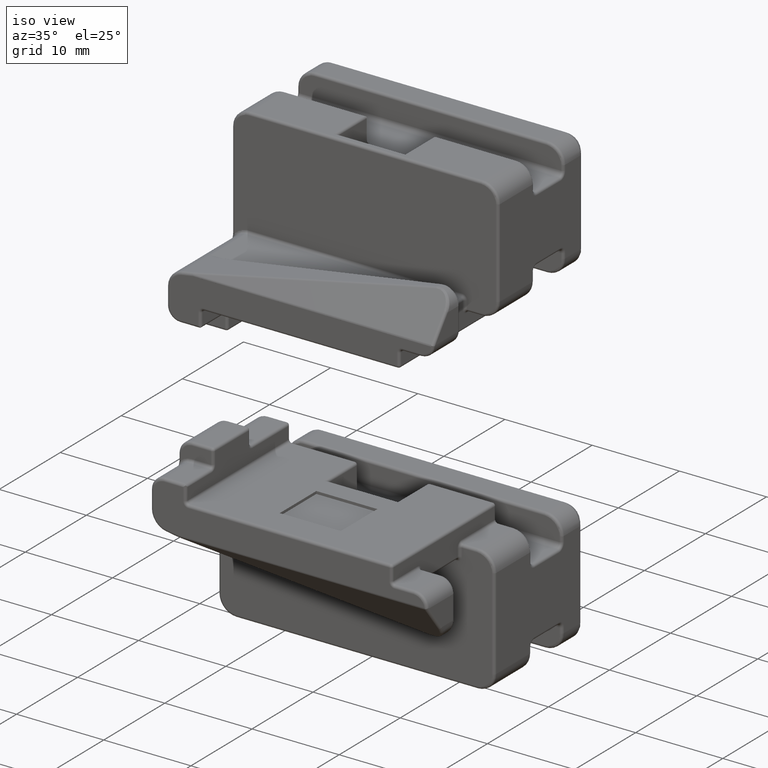
[diagram: clean part render]
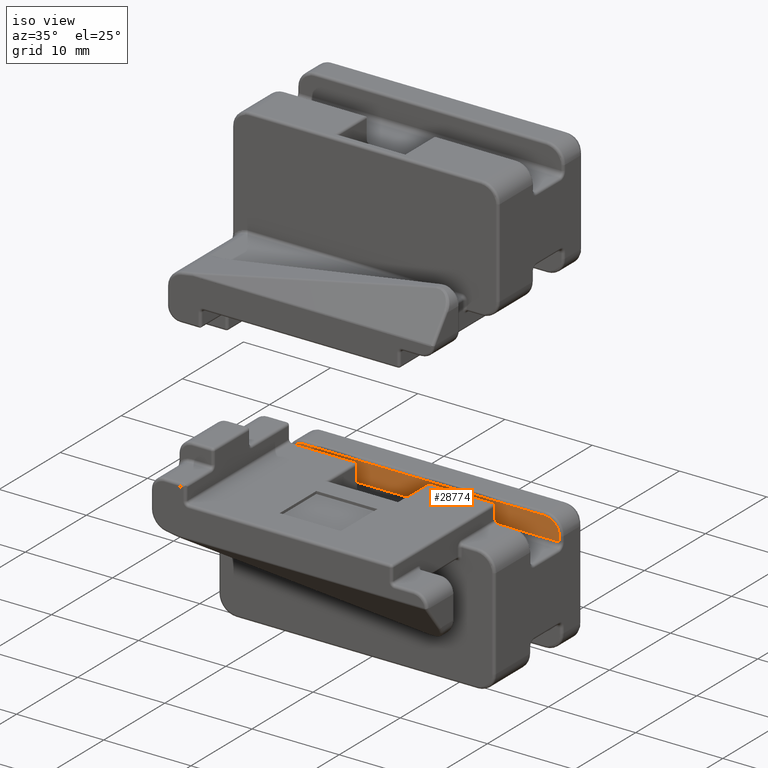
[diagram: same view with one face highlighted and labeled with its STEP entity id]
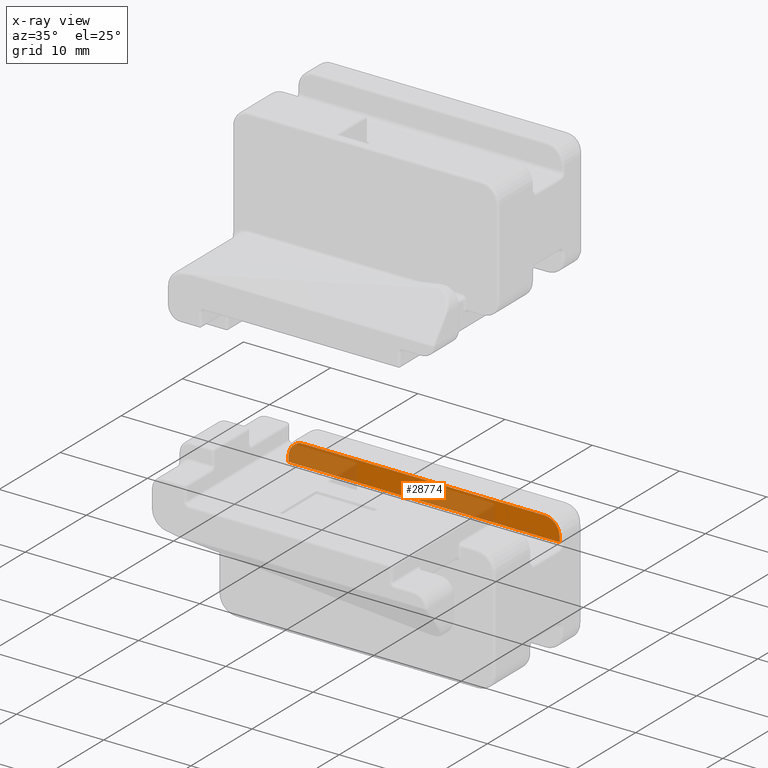
[diagram: x-ray of the same camera — body ghosted, the highlighted face saturated]
A machine part, iso view. The second image highlights one B-rep face of the part: STEP entity #28774.
The next image is the same camera in x-ray: the body ghosted, the highlighted face saturated — about 48% of this face is hidden behind the body in this view.
In plain terms, the highlighted planar face has unit normal (-0, 1, -0).
Its self-contained STEP definition (entity closure, byte-faithful):
#194 = ORIENTED_EDGE ( 'NONE', *, *, #2401, .T. ) ;
#259 = CARTESIAN_POINT ( 'NONE',  ( -86.27159562005489600, 58.63120508436628600, -52.10772025123731800 ) ) ;
#365 = CARTESIAN_POINT ( 'NONE',  ( -85.28581774844060700, 58.63120507582517900, -52.58954016671845000 ) ) ;
#484 = CARTESIAN_POINT ( 'NONE',  ( -85.04756352104898600, 58.63120530450869000, -52.88219373986807200 ) ) ;
#592 = CARTESIAN_POINT ( 'NONE',  ( -84.86448417290544900, 58.63120508606064600, -53.26447868061441000 ) ) ;
#623 = CARTESIAN_POINT ( 'NONE',  ( -84.77599785715634100, 58.63120507557527400, -54.41131073726552400 ) ) ;
#1588 = PLANE ( 'NONE',  #21399 ) ;
#2401 = EDGE_CURVE ( 'NONE', #26485, #15026, #5120, .T. ) ;
#2408 = CARTESIAN_POINT ( 'NONE',  ( -114.1511978571563500, 58.63120507557525900, -52.09751073726552300 ) ) ;
#2699 = CARTESIAN_POINT ( 'NONE',  ( -86.06123201279064000, 58.63120507254865300, -52.15028080118277400 ) ) ;
#2808 = CARTESIAN_POINT ( 'NONE',  ( -85.27944463944336900, 58.63120507559349200, -52.59587452698758600 ) ) ;
#2915 = CARTESIAN_POINT ( 'NONE',  ( -85.03128326941154600, 58.63120528402880900, -52.90813727507597300 ) ) ;
#3025 = CARTESIAN_POINT ( 'NONE',  ( -84.86421929554049400, 58.63120508623377000, -53.26526811280537300 ) ) ;
#3644 = EDGE_CURVE ( 'NONE', #26485, #22222, #21422, .T. ) ;
#3815 = CARTESIAN_POINT ( 'NONE',  ( -115.3781884842864000, 58.63120507655428100, -52.61630066056437000 ) ) ;
#3846 = CARTESIAN_POINT ( 'NONE',  ( -115.2015944756674900, 58.63120521144603000, -52.45771460756365900 ) ) ;
#3907 = CARTESIAN_POINT ( 'NONE',  ( -115.3655702273636600, 58.63120507566505800, -52.60350435236991000 ) ) ;
#3951 = CARTESIAN_POINT ( 'NONE',  ( -115.2049868228786000, 58.63120520550026500, -52.46031905235439300 ) ) ;
#4056 = CARTESIAN_POINT ( 'NONE',  ( -115.3956578876406500, 58.63120507932901400, -52.63440786075229700 ) ) ;
#4109 = B_SPLINE_CURVE_WITH_KNOTS ( 'NONE', 3,
 ( #27281, #16337, #18849, #18412, #17380, #27119, #18956, #14805, #15534, #5308, #4606, #5229, #4166, #4056, #3815, #4505, #3907, #4713, #4124, #4782, #4288, #4469, #4919, #3951, #3846, #20716, #21256, #20818, #21752, #20911, #21367, #21023, #21160, #21869, #21828, #21798, #20651, #21717, #20853, #21623, #20517, #13505, #13411, #13346, #13213, #13641, #12686, #12964, #13711, #13030, #13913, #12624 ),
 .UNSPECIFIED., .F., .F.,
 ( 4, 2, 2, 2, 2, 2, 1, 1, 1, 1, 2, 2, 2, 2, 2, 1, 2, 2, 2, 1, 2, 2, 2, 2, 2, 2, 1, 1, 2, 4 ),
 ( 0.0000000000000000000, 0.1250000000042899600, 0.1875000000064309700, 0.2500000000085719800, 0.3750000000128540000, 0.4375000000149908400, 0.4687500000160622100, 0.4843750000165978900, 0.4921875000168632300, 0.4960937500169906300, 0.4980468750170543000, 0.5000000000171179700, 0.5625000000150243200, 0.5703125000147621900, 0.5781250000145000700, 0.5937500000139914700, 0.6250000000129818400, 0.6406250000124684700, 0.6445312500123400200, 0.6484375000122116800, 0.6562500000119639900, 0.6875000000109795500, 0.7500000000090107900, 0.7812500000080263600, 0.7851562500078835800, 0.7890625000077407000, 0.7968750000074523700, 0.8125000000068887100, 0.8750000000045876600, 1.000000000000000000 ),
 .UNSPECIFIED. ) ;
#4124 = CARTESIAN_POINT ( 'NONE',  ( -115.3605920362067100, 58.63120507557523800, -52.59851666873332500 ) ) ;
#4166 = CARTESIAN_POINT ( 'NONE',  ( -115.4299054124422100, 58.63120508933161500, -52.67128207560868000 ) ) ;
#4288 = CARTESIAN_POINT ( 'NONE',  ( -115.3220299333096800, 58.63120504921716500, -52.55714393083886200 ) ) ;
#4469 = CARTESIAN_POINT ( 'NONE',  ( -115.2367328472341100, 58.63120515679685200, -52.48585212994918700 ) ) ;
#4505 = CARTESIAN_POINT ( 'NONE',  ( -115.3693684277034200, 58.63120507582517900, -52.60733062854997400 ) ) ;
#4606 = CARTESIAN_POINT ( 'NONE',  ( -115.5126384638303600, 58.63120513081408100, -52.77078786041425200 ) ) ;
#4713 = CARTESIAN_POINT ( 'NONE',  ( -115.3630340674343100, 58.63120507559348500, -52.60095751955263700 ) ) ;
#4782 = CARTESIAN_POINT ( 'NONE',  ( -115.3572866946570600, 58.63120507557523800, -52.59521836318355500 ) ) ;
#4919 = CARTESIAN_POINT ( 'NONE',  ( -115.2266044530580400, 58.63120517106335700, -52.47756041589855200 ) ) ;
#5096 = ORIENTED_EDGE ( 'NONE', *, *, #17840, .F. ) ;
#5120 = LINE ( 'NONE', #7296, #18525 ) ;
#5172 = CARTESIAN_POINT ( 'NONE',  ( -85.90217727651828700, 58.63120510632228400, -52.19914278113409300 ) ) ;
#5229 = CARTESIAN_POINT ( 'NONE',  ( -115.4580467235260200, 58.63120510286741900, -52.70398941149958500 ) ) ;
#5279 = CARTESIAN_POINT ( 'NONE',  ( -85.27370547637043800, 58.63120507557526700, -52.60162190648315300 ) ) ;
#5308 = CARTESIAN_POINT ( 'NONE',  ( -115.5467769155001000, 58.63120515009970300, -52.81716630332533700 ) ) ;
#5393 = CARTESIAN_POINT ( 'NONE',  ( -85.02183574853594900, 58.63120526818418900, -52.92360600275043200 ) ) ;
#5499 = CARTESIAN_POINT ( 'NONE',  ( -84.85943614970568700, 58.63120509138804700, -53.27968551595283500 ) ) ;
#5506 = EDGE_CURVE ( 'NONE', #17058, #15026, #14500, .T. ) ;
#5584 = FACE_OUTER_BOUND ( 'NONE', #11747, .T. ) ;
#6332 = EDGE_CURVE ( 'NONE', #22222, #26847, #4109, .T. ) ;
#7197 = DIRECTION ( 'NONE',  ( 1.000000000000000000, 0.0000000000000000000, 0.0000000000000000000 ) ) ;
#7296 = CARTESIAN_POINT ( 'NONE',  ( -84.47419785715634100, 58.63120507557527400, -54.41131073726552400 ) ) ;
#7609 = CARTESIAN_POINT ( 'NONE',  ( -85.63961224037628000, 58.63120518254334000, -52.31701172617142200 ) ) ;
#7718 = CARTESIAN_POINT ( 'NONE',  ( -85.16433924815193300, 58.63120515679686700, -52.72217574926088400 ) ) ;
#7828 = CARTESIAN_POINT ( 'NONE',  ( -85.00167516323267600, 58.63120523576710500, -52.95788740905636200 ) ) ;
#7931 = CARTESIAN_POINT ( 'NONE',  ( -84.83176167685489600, 58.63120513140800200, -53.36946036612956600 ) ) ;
#7952 = VERTEX_POINT ( 'NONE', #18265 ) ;
#10006 = CARTESIAN_POINT ( 'NONE',  ( -85.44927498030210700, 58.63120513081411600, -52.44627013059076100 ) ) ;
#10088 = DIRECTION ( 'NONE',  ( 1.000000000000000000, 0.0000000000000000000, -0.0000000000000000000 ) ) ;
#10113 = CARTESIAN_POINT ( 'NONE',  ( -85.13880617265070300, 58.63120520550025800, -52.75392177104249900 ) ) ;
#10221 = CARTESIAN_POINT ( 'NONE',  ( -84.95088482038248400, 58.63120516260593000, -53.05280311090918100 ) ) ;
#10326 = CARTESIAN_POINT ( 'NONE',  ( -84.78590138745998700, 58.63120516741103200, -53.59297980817658000 ) ) ;
#11417 = CARTESIAN_POINT ( 'NONE',  ( -84.47419785715634100, 58.63120507557526700, -54.91431073726553100 ) ) ;
#11747 = EDGE_LOOP ( 'NONE', ( #28929, #29837, #194, #16863, #14239, #5096 ) ) ;
#12451 = CARTESIAN_POINT ( 'NONE',  ( -85.34976919549807000, 58.63120508933164400, -52.52900318197934800 ) ) ;
#12557 = CARTESIAN_POINT ( 'NONE',  ( -85.12218047453771400, 58.63120523982617300, -52.77545430696563500 ) ) ;
#12624 = CARTESIAN_POINT ( 'NONE',  ( -114.1511978571563500, 58.63120507557525900, -52.09751073726552300 ) ) ;
#12664 = CARTESIAN_POINT ( 'NONE',  ( -84.88382687115596100, 58.63120509489940700, -53.20897099438484900 ) ) ;
#12686 = CARTESIAN_POINT ( 'NONE',  ( -114.6600709656660200, 58.63120509895900100, -52.17475056708694600 ) ) ;
#12759 = CARTESIAN_POINT ( 'NONE',  ( -84.77599785715634100, 58.63120507557525900, -53.80771073726552300 ) ) ;
#12964 = CARTESIAN_POINT ( 'NONE',  ( -114.5894482282931200, 58.63120513140798100, -52.15327455695744200 ) ) ;
#13030 = CARTESIAN_POINT ( 'NONE',  ( -114.3659287862462400, 58.63120516741103200, -52.10741426755822700 ) ) ;
#13213 = CARTESIAN_POINT ( 'NONE',  ( -114.6887803458000800, 58.63120508790540700, -52.18410495168505700 ) ) ;
#13346 = CARTESIAN_POINT ( 'NONE',  ( -114.6936404813009700, 58.63120508623374100, -52.18573217554408200 ) ) ;
#13411 = CARTESIAN_POINT ( 'NONE',  ( -114.6941087240479900, 58.63120508610487700, -52.18588935934131700 ) ) ;
#13505 = CARTESIAN_POINT ( 'NONE',  ( -114.6944299151312800, 58.63120508606063200, -52.18599705346012700 ) ) ;
#13641 = CARTESIAN_POINT ( 'NONE',  ( -114.6792230784680800, 58.63120509138803300, -52.18094902981383100 ) ) ;
#13711 = CARTESIAN_POINT ( 'NONE',  ( -114.5241288073605800, 58.63120515783546000, -52.13757577885291300 ) ) ;
#13814 = DIRECTION ( 'NONE',  ( 0.0000000000000000000, 1.119176436114069000E-015, 1.000000000000000000 ) ) ;
#13913 = CARTESIAN_POINT ( 'NONE',  ( -114.2585491954463200, 58.63120507557524500, -52.09735084757947000 ) ) ;
#14239 = ORIENTED_EDGE ( 'NONE', *, *, #15519, .F. ) ;
#14500 = LINE ( 'NONE', #20441, #24537 ) ;
#14681 = CARTESIAN_POINT ( 'NONE',  ( -86.48619785715634100, 58.63120507557526700, -52.09751073726552300 ) ) ;
#14780 = CARTESIAN_POINT ( 'NONE',  ( -85.29478778045479700, 58.63120507655430200, -52.58072011013536700 ) ) ;
#14805 = CARTESIAN_POINT ( 'NONE',  ( -115.6955558353475800, 58.63120516209154000, -53.06354249047657800 ) ) ;
#14880 = CARTESIAN_POINT ( 'NONE',  ( -85.07049885150046000, 58.63120531207326300, -52.84716293384565900 ) ) ;
#14975 = CARTESIAN_POINT ( 'NONE',  ( -84.86571673502632500, 58.63120508584079000, -53.26080480600182900 ) ) ;
#15026 = VERTEX_POINT ( 'NONE', #623 ) ;
#15519 = EDGE_CURVE ( 'NONE', #7952, #17058, #27205, .T. ) ;
#15534 = CARTESIAN_POINT ( 'NONE',  ( -115.6418968682493500, 58.63120518254330400, -52.96112512049049300 ) ) ;
#16337 = CARTESIAN_POINT ( 'NONE',  ( -115.8613322063405300, 58.63120507557525200, -53.70040222321925000 ) ) ;
#16863 = ORIENTED_EDGE ( 'NONE', *, *, #5506, .F. ) ;
#17016 = CARTESIAN_POINT ( 'NONE',  ( -86.11347120508880000, 58.63120507637420800, -52.13778820721801600 ) ) ;
#17058 = VERTEX_POINT ( 'NONE', #23279 ) ;
#17108 = CARTESIAN_POINT ( 'NONE',  ( -85.28199147226058600, 58.63120507566506500, -52.59333836705820900 ) ) ;
#17196 = CARTESIAN_POINT ( 'NONE',  ( -115.8613978571563500, 58.63120507557525900, -53.80771073726552300 ) ) ;
#17215 = CARTESIAN_POINT ( 'NONE',  ( -85.04018563018861700, 58.63120529754530000, -52.89378086205233100 ) ) ;
#17319 = CARTESIAN_POINT ( 'NONE',  ( -84.86437647896707400, 58.63120508610487000, -53.26479987116142200 ) ) ;
#17380 = CARTESIAN_POINT ( 'NONE',  ( -115.8086277932390500, 58.63120507254862400, -53.38274489290562700 ) ) ;
#17840 = EDGE_CURVE ( 'NONE', #26847, #7952, #25711, .T. ) ;
#18265 = CARTESIAN_POINT ( 'NONE',  ( -86.48619785715634100, 58.63120507557526700, -52.09751073726552300 ) ) ;
#18412 = CARTESIAN_POINT ( 'NONE',  ( -115.8211203872038300, 58.63120507637420100, -53.43498408520302000 ) ) ;
#18489 = VECTOR ( 'NONE', #29128, 1000.000000000000000 ) ;
#18525 = VECTOR ( 'NONE', #7197, 1000.000000000000000 ) ;
#18849 = CARTESIAN_POINT ( 'NONE',  ( -115.8511883431845600, 58.63120508436630000, -53.59310850016692700 ) ) ;
#18956 = CARTESIAN_POINT ( 'NONE',  ( -115.7597658132873400, 58.63120510632226300, -53.22369015663414200 ) ) ;
#19082 = DIRECTION ( 'NONE',  ( -0.0000000000000000000, -1.119176436114069000E-015, -1.000000000000000000 ) ) ;
#19361 = VECTOR ( 'NONE', #10088, 1000.000000000000000 ) ;
#19435 = CARTESIAN_POINT ( 'NONE',  ( -85.95814686786404500, 58.63120508526574800, -52.18009750062309100 ) ) ;
#19542 = CARTESIAN_POINT ( 'NONE',  ( -85.27700378883361100, 58.63120507557525200, -52.59831655800518700 ) ) ;
#19636 = CARTESIAN_POINT ( 'NONE',  ( -85.02896304305566800, 58.63120528005180900, -52.91188728444581800 ) ) ;
#19743 = CARTESIAN_POINT ( 'NONE',  ( -84.86259207157627300, 58.63120508790542800, -53.27012824862060800 ) ) ;
#20441 = CARTESIAN_POINT ( 'NONE',  ( -84.77599785715634100, 58.63120507557526700, -54.91431073726553100 ) ) ;
#20517 = CARTESIAN_POINT ( 'NONE',  ( -114.6981037944316500, 58.63120508584078300, -52.18722961716368800 ) ) ;
#20651 = CARTESIAN_POINT ( 'NONE',  ( -114.9061054943212800, 58.63120516260590200, -52.27239770586593400 ) ) ;
#20716 = CARTESIAN_POINT ( 'NONE',  ( -115.1834542835794400, 58.63120523982616600, -52.44369335168666200 ) ) ;
#20818 = CARTESIAN_POINT ( 'NONE',  ( -115.1117456532633100, 58.63120531207324900, -52.39201172669194100 ) ) ;
#20853 = CARTESIAN_POINT ( 'NONE',  ( -114.7499376157546600, 58.63120509489938600, -52.20533975707120800 ) ) ;
#20911 = CARTESIAN_POINT ( 'NONE',  ( -115.0651277295428900, 58.63120529754525700, -52.36169850852971300 ) ) ;
#21023 = CARTESIAN_POINT ( 'NONE',  ( -115.0470213101274300, 58.63120528005178800, -52.35047592325846500 ) ) ;
#21160 = CARTESIAN_POINT ( 'NONE',  ( -115.0353025928032100, 58.63120526818415400, -52.34334862933072700 ) ) ;
#21256 = CARTESIAN_POINT ( 'NONE',  ( -115.1473167422196200, 58.63120529185758300, -52.41655065141718900 ) ) ;
#21367 = CARTESIAN_POINT ( 'NONE',  ( -115.0507713189714600, 58.63120528402880900, -52.35279614928803900 ) ) ;
#21399 = AXIS2_PLACEMENT_3D ( 'NONE', #11417, #28011, #13814 ) ;
#21422 = LINE ( 'NONE', #29085, #18489 ) ;
#21623 = CARTESIAN_POINT ( 'NONE',  ( -114.7069487688289200, 58.63120508680053400, -52.19016968313359000 ) ) ;
#21717 = CARTESIAN_POINT ( 'NONE',  ( -114.8007502142392000, 58.63120510587550900, -52.22361550922170900 ) ) ;
#21752 = CARTESIAN_POINT ( 'NONE',  ( -115.0767148502534700, 58.63120530450866900, -52.36907639839996200 ) ) ;
#21798 = CARTESIAN_POINT ( 'NONE',  ( -114.9460336139696000, 58.63120518857267900, -52.29230039182257900 ) ) ;
#21802 = CARTESIAN_POINT ( 'NONE',  ( -85.74202961036165500, 58.63120516209156800, -52.26335275907322100 ) ) ;
#21828 = CARTESIAN_POINT ( 'NONE',  ( -115.0010211892815900, 58.63120523576706200, -52.32318804559614000 ) ) ;
#21869 = CARTESIAN_POINT ( 'NONE',  ( -115.0178956350822400, 58.63120525104073300, -52.33290658196721500 ) ) ;
#21911 = CARTESIAN_POINT ( 'NONE',  ( -85.23563104374349600, 58.63120504921715100, -52.63687866919237700 ) ) ;
#22007 = CARTESIAN_POINT ( 'NONE',  ( -85.01139370032707600, 58.63120525104073300, -52.94101296191160300 ) ) ;
#22114 = CARTESIAN_POINT ( 'NONE',  ( -84.85323768698012300, 58.63120509895898600, -53.29883762875532200 ) ) ;
#22222 = VERTEX_POINT ( 'NONE', #17196 ) ;
#23279 = CARTESIAN_POINT ( 'NONE',  ( -84.77599785715634100, 58.63120507557525900, -53.80771073726552300 ) ) ;
#24233 = CARTESIAN_POINT ( 'NONE',  ( -85.49565342321264400, 58.63120515009974600, -52.41213167892086500 ) ) ;
#24311 = CARTESIAN_POINT ( 'NONE',  ( -84.47419785715634100, 58.63120507557526700, -52.09751073726552300 ) ) ;
#24339 = CARTESIAN_POINT ( 'NONE',  ( -85.15604753475966500, 58.63120517106336400, -52.73230414265822200 ) ) ;
#24445 = CARTESIAN_POINT ( 'NONE',  ( -84.97078750729315300, 58.63120518857269300, -53.01287498861606200 ) ) ;
#24537 = VECTOR ( 'NONE', #19082, 1000.000000000000000 ) ;
#24548 = CARTESIAN_POINT ( 'NONE',  ( -84.81606289875262000, 58.63120515783546000, -53.43477978706238900 ) ) ;
#25711 = LINE ( 'NONE', #24311, #19361 ) ;
#26485 = VERTEX_POINT ( 'NONE', #27370 ) ;
#26618 = CARTESIAN_POINT ( 'NONE',  ( -85.38247653138843400, 58.63120510286744000, -52.50086187089535600 ) ) ;
#26717 = CARTESIAN_POINT ( 'NONE',  ( -85.13620172860780100, 58.63120521144604400, -52.75731411728352100 ) ) ;
#26815 = CARTESIAN_POINT ( 'NONE',  ( -84.90210262236257700, 58.63120510587556600, -53.15815839616961100 ) ) ;
#26847 = VERTEX_POINT ( 'NONE', #2408 ) ;
#26911 = CARTESIAN_POINT ( 'NONE',  ( -84.77583796747811100, 58.63120507557526700, -53.70035939897525900 ) ) ;
#27119 = CARTESIAN_POINT ( 'NONE',  ( -115.7788110937987700, 58.63120508526571200, -53.27965974798061000 ) ) ;
#27205 = B_SPLINE_CURVE_WITH_KNOTS ( 'NONE', 3,
 ( #14681, #28956, #259, #17016, #2699, #19435, #5172, #21802, #7609, #24233, #10006, #26618, #12451, #29054, #14780, #365, #17108, #2808, #19542, #5279, #21911, #7718, #24339, #10113, #26717, #12557, #29159, #14880, #484, #17215, #2915, #19636, #5393, #22007, #7828, #24445, #10221, #26815, #12664, #29252, #14975, #592, #17319, #3025, #19743, #5499, #22114, #7931, #24548, #10326, #26911, #12759 ),
 .UNSPECIFIED., .F., .F.,
 ( 4, 2, 2, 2, 2, 2, 1, 1, 1, 1, 2, 2, 2, 2, 2, 1, 2, 2, 2, 1, 2, 2, 2, 2, 2, 2, 1, 1, 2, 4 ),
 ( 0.0000000000000000000, 0.1249999999979651300, 0.1874999999969476900, 0.2499999999959302600, 0.3749999999938813900, 0.4374999999928507200, 0.4687499999923353000, 0.4843749999920776200, 0.4921874999919461600, 0.4960937499918804900, 0.4980468749918529600, 0.4999999999918254300, 0.5624999999927747800, 0.5703124999928953500, 0.5781249999930160300, 0.5937499999932430700, 0.6249999999936823900, 0.6406249999938946600, 0.6445312499939465100, 0.6484374999939982500, 0.6562499999941058300, 0.6874999999945276000, 0.7499999999953660400, 0.7812499999957784900, 0.7851562499958498800, 0.7890624999959212600, 0.7968749999960641500, 0.8124999999963622400, 0.8749999999975747200, 1.000000000000000000 ),
 .UNSPECIFIED. ) ;
#27281 = CARTESIAN_POINT ( 'NONE',  ( -115.8613978571563500, 58.63120507557525900, -53.80771073726552300 ) ) ;
#27370 = CARTESIAN_POINT ( 'NONE',  ( -115.8613978571563300, 58.63120507557527400, -54.41131073726552400 ) ) ;
#28011 = DIRECTION ( 'NONE',  ( -0.0000000000000000000, 1.000000000000000000, -1.119176436114069000E-015 ) ) ;
#28774 = ADVANCED_FACE ( 'NONE', ( #5584 ), #1588, .F. ) ;
#28929 = ORIENTED_EDGE ( 'NONE', *, *, #6332, .F. ) ;
#28956 = CARTESIAN_POINT ( 'NONE',  ( -86.37888934310862500, 58.63120507557526700, -52.09757638808132200 ) ) ;
#29054 = CARTESIAN_POINT ( 'NONE',  ( -85.31289498064239800, 58.63120507932902100, -52.56325070678103400 ) ) ;
#29085 = CARTESIAN_POINT ( 'NONE',  ( -115.8613978571563300, 58.63120507557526700, -54.91431073726553100 ) ) ;
#29128 = DIRECTION ( 'NONE',  ( 0.0000000000000000000, 1.119176436114069000E-015, 1.000000000000000000 ) ) ;
#29159 = CARTESIAN_POINT ( 'NONE',  ( -85.09503777676495400, 58.63120529185758300, -52.81159184469852600 ) ) ;
#29252 = CARTESIAN_POINT ( 'NONE',  ( -84.86865679987512600, 58.63120508680056300, -53.25195983478551700 ) ) ;
#29837 = ORIENTED_EDGE ( 'NONE', *, *, #3644, .F. ) ;